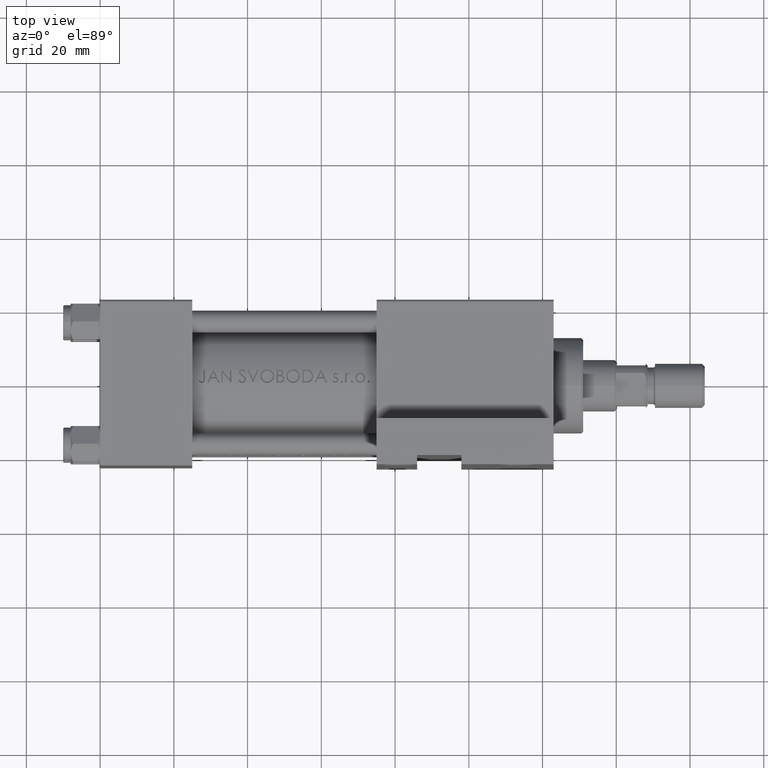
[diagram: clean part render]
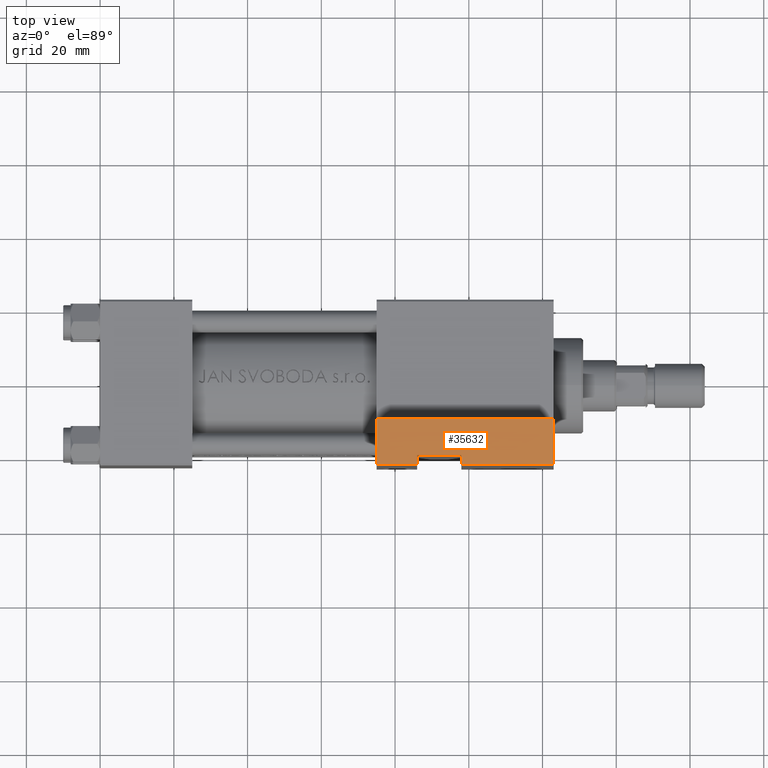
[diagram: same view with one face highlighted and labeled with its STEP entity id]
A machine part, top view. The second image highlights one B-rep face of the part: STEP entity #35632.
In plain terms, the highlighted planar face has unit normal (0, 0, 1).
Its self-contained STEP definition (entity closure, byte-faithful):
#1319 = CARTESIAN_POINT ( 'NONE',  ( 75.00000000000000000, -42.00000000000000711, -22.50000000000000000 ) ) ;
#1572 = ORIENTED_EDGE ( 'NONE', *, *, #23032, .F. ) ;
#1815 = CARTESIAN_POINT ( 'NONE',  ( 75.00000000000000000, -42.00000000000000711, -9.999999999999998224 ) ) ;
#2577 = VERTEX_POINT ( 'NONE', #5471 ) ;
#3003 = VERTEX_POINT ( 'NONE', #8251 ) ;
#3615 = DIRECTION ( 'NONE',  ( -0.000000000000000000, -0.000000000000000000, -1.000000000000000000 ) ) ;
#3855 = CARTESIAN_POINT ( 'NONE',  ( 86.00000000000000000, -42.00000000000001421, -20.00000000000000000 ) ) ;
#4039 = CARTESIAN_POINT ( 'NONE',  ( 75.00000000000000000, -42.00000000000000711, -9.999999999999998224 ) ) ;
#5471 = CARTESIAN_POINT ( 'NONE',  ( 75.00000000000000000, -42.00000000000000711, -22.50000000000000000 ) ) ;
#6432 = CARTESIAN_POINT ( 'NONE',  ( 98.00000000000000000, -42.00000000000001421, -20.00000000000000000 ) ) ;
#7999 = ORIENTED_EDGE ( 'NONE', *, *, #31998, .T. ) ;
#8251 = CARTESIAN_POINT ( 'NONE',  ( 98.00000000000000000, -42.00000000000001421, -22.50000000000000000 ) ) ;
#8877 = DIRECTION ( 'NONE',  ( -1.000000000000000000, -0.000000000000000000, -0.000000000000000000 ) ) ;
#9221 = VECTOR ( 'NONE', #9568, 1000.000000000000000 ) ;
#9568 = DIRECTION ( 'NONE',  ( 0.000000000000000000, 0.000000000000000000, -1.000000000000000000 ) ) ;
#9759 = VECTOR ( 'NONE', #44666, 1000.000000000000000 ) ;
#9787 = ORIENTED_EDGE ( 'NONE', *, *, #16132, .F. ) ;
#10484 = DIRECTION ( 'NONE',  ( -1.000000000000000000, -0.000000000000000000, -0.000000000000000000 ) ) ;
#10562 = LINE ( 'NONE', #35921, #33169 ) ;
#12266 = CARTESIAN_POINT ( 'NONE',  ( 75.00000000000000000, -42.00000000000000711, -9.999999999999998224 ) ) ;
#12426 = AXIS2_PLACEMENT_3D ( 'NONE', #4039, #22310, #44227 ) ;
#12516 = LINE ( 'NONE', #42953, #9221 ) ;
#12689 = VERTEX_POINT ( 'NONE', #22533 ) ;
#13277 = DIRECTION ( 'NONE',  ( -1.000000000000000000, -0.000000000000000000, -0.000000000000000000 ) ) ;
#14246 = VECTOR ( 'NONE', #25088, 1000.000000000000000 ) ;
#14366 = VERTEX_POINT ( 'NONE', #28579 ) ;
#14397 = LINE ( 'NONE', #43868, #25157 ) ;
#14524 = FACE_OUTER_BOUND ( 'NONE', #15639, .T. ) ;
#14721 = VECTOR ( 'NONE', #8877, 1000.000000000000000 ) ;
#15639 = EDGE_LOOP ( 'NONE', ( #31462, #30917, #19868, #30402, #7999, #30768, #1572, #9787 ) ) ;
#16132 = EDGE_CURVE ( 'NONE', #47137, #14366, #26049, .T. ) ;
#16709 = DIRECTION ( 'NONE',  ( 0.000000000000000000, 0.000000000000000000, -1.000000000000000000 ) ) ;
#19868 = ORIENTED_EDGE ( 'NONE', *, *, #33034, .F. ) ;
#21274 = EDGE_CURVE ( 'NONE', #47137, #3003, #32503, .T. ) ;
#22310 = DIRECTION ( 'NONE',  ( 0.000000000000000000, -1.000000000000000000, 0.000000000000000000 ) ) ;
#22533 = CARTESIAN_POINT ( 'NONE',  ( 122.9999999999999858, -42.00000000000000711, -22.50000000000000000 ) ) ;
#23032 = EDGE_CURVE ( 'NONE', #14366, #27235, #26029, .T. ) ;
#23042 = VECTOR ( 'NONE', #3615, 1000.000000000000000 ) ;
#23466 = EDGE_CURVE ( 'NONE', #42472, #42497, #10562, .T. ) ;
#25088 = DIRECTION ( 'NONE',  ( -1.000000000000000000, -0.000000000000000000, -0.000000000000000000 ) ) ;
#25157 = VECTOR ( 'NONE', #10484, 1000.000000000000000 ) ;
#26029 = LINE ( 'NONE', #3855, #23042 ) ;
#26049 = LINE ( 'NONE', #36062, #14246 ) ;
#27235 = VERTEX_POINT ( 'NONE', #36315 ) ;
#27256 = EDGE_CURVE ( 'NONE', #27235, #2577, #14397, .T. ) ;
#28579 = CARTESIAN_POINT ( 'NONE',  ( 86.00000000000000000, -42.00000000000001421, -20.00000000000000000 ) ) ;
#30402 = ORIENTED_EDGE ( 'NONE', *, *, #23466, .T. ) ;
#30768 = ORIENTED_EDGE ( 'NONE', *, *, #27256, .F. ) ;
#30917 = ORIENTED_EDGE ( 'NONE', *, *, #34698, .F. ) ;
#31462 = ORIENTED_EDGE ( 'NONE', *, *, #21274, .T. ) ;
#31998 = EDGE_CURVE ( 'NONE', #42497, #2577, #38858, .T. ) ;
#32503 = LINE ( 'NONE', #6432, #9759 ) ;
#33034 = EDGE_CURVE ( 'NONE', #42472, #12689, #12516, .T. ) ;
#33169 = VECTOR ( 'NONE', #13277, 1000.000000000000000 ) ;
#34698 = EDGE_CURVE ( 'NONE', #12689, #3003, #34941, .T. ) ;
#34941 = LINE ( 'NONE', #1319, #14721 ) ;
#35632 = ADVANCED_FACE ( 'NONE', ( #14524 ), #36937, .T. ) ;
#35921 = CARTESIAN_POINT ( 'NONE',  ( 75.00000000000000000, -42.00000000000000711, -9.999999999999998224 ) ) ;
#36062 = CARTESIAN_POINT ( 'NONE',  ( 86.00000000000000000, -42.00000000000001421, -20.00000000000000000 ) ) ;
#36315 = CARTESIAN_POINT ( 'NONE',  ( 86.00000000000000000, -42.00000000000001421, -22.50000000000000000 ) ) ;
#36937 = PLANE ( 'NONE',  #12426 ) ;
#38858 = LINE ( 'NONE', #1815, #44972 ) ;
#42472 = VERTEX_POINT ( 'NONE', #46102 ) ;
#42497 = VERTEX_POINT ( 'NONE', #12266 ) ;
#42953 = CARTESIAN_POINT ( 'NONE',  ( 122.9999999999999858, -42.00000000000000711, -9.999999999999998224 ) ) ;
#43115 = CARTESIAN_POINT ( 'NONE',  ( 98.00000000000000000, -42.00000000000001421, -20.00000000000000000 ) ) ;
#43868 = CARTESIAN_POINT ( 'NONE',  ( 75.00000000000000000, -42.00000000000000711, -22.50000000000000000 ) ) ;
#44227 = DIRECTION ( 'NONE',  ( 0.000000000000000000, -0.000000000000000000, -1.000000000000000000 ) ) ;
#44666 = DIRECTION ( 'NONE',  ( -0.000000000000000000, -0.000000000000000000, -1.000000000000000000 ) ) ;
#44972 = VECTOR ( 'NONE', #16709, 1000.000000000000000 ) ;
#46102 = CARTESIAN_POINT ( 'NONE',  ( 122.9999999999999858, -42.00000000000000711, -9.999999999999998224 ) ) ;
#47137 = VERTEX_POINT ( 'NONE', #43115 ) ;